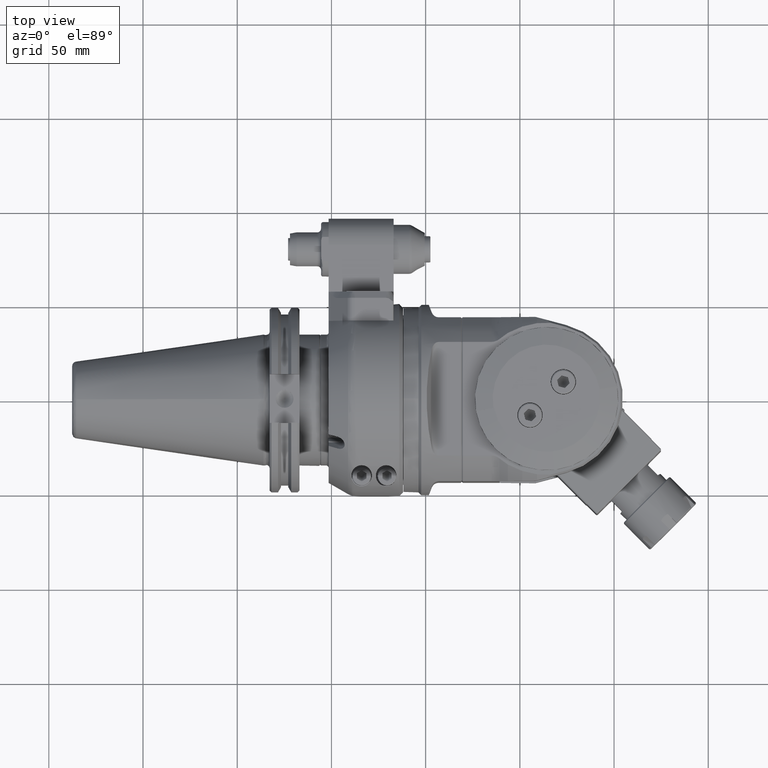
[diagram: clean part render]
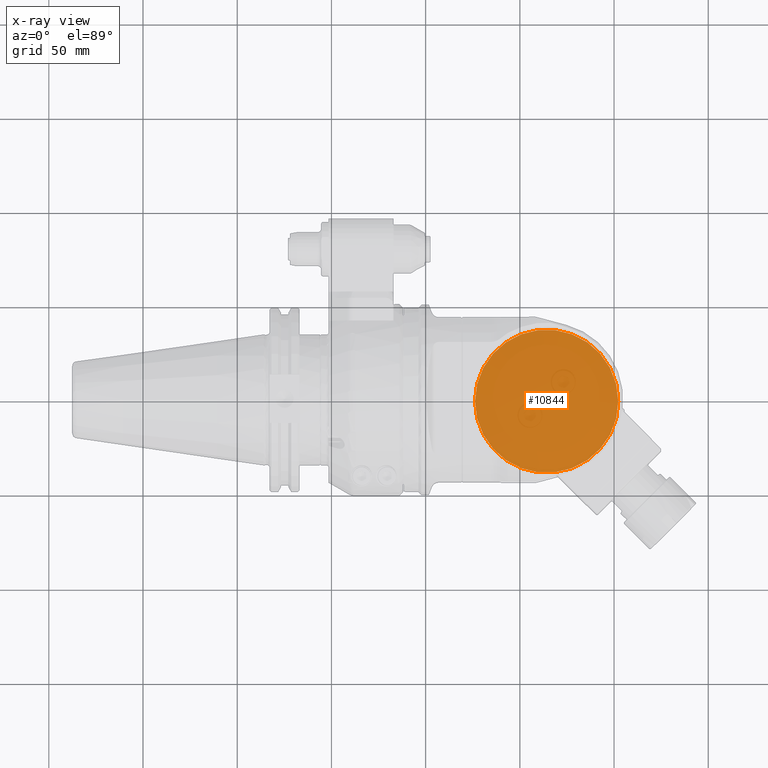
[diagram: x-ray — body ghosted, one internal face saturated and labeled with its STEP entity id]
A machine part, top view, then the same camera in x-ray: the body is ghosted and one INTERNAL B-rep face — a face not visible from any outside direction — is saturated and labeled: STEP entity #10844.
In plain terms, the highlighted planar face has unit normal (0, -0, -1).
Its self-contained STEP definition (entity closure, byte-faithful):
#606=PLANE('',#11949);
#1278=FACE_OUTER_BOUND('',#1976,.T.);
#1976=EDGE_LOOP('',(#9142));
#2584=CIRCLE('',#11948,38.);
#5170=VERTEX_POINT('',#59506);
#6563=EDGE_CURVE('',#5170,#5170,#2584,.T.);
#9142=ORIENTED_EDGE('',*,*,#6563,.T.);
#10844=ADVANCED_FACE('',(#1278),#606,.T.);
#11948=AXIS2_PLACEMENT_3D('',#59507,#14315,#14316);
#11949=AXIS2_PLACEMENT_3D('',#59509,#14318,#14319);
#14315=DIRECTION('center_axis',(0.,0.,1.));
#14316=DIRECTION('ref_axis',(-1.,0.,0.));
#14318=DIRECTION('center_axis',(0.,0.,1.));
#14319=DIRECTION('ref_axis',(1.,0.,0.));
#59506=CARTESIAN_POINT('',(69.,-4.65365783675994E-15,38.5));
#59507=CARTESIAN_POINT('Origin',(107.,0.,38.5));
#59509=CARTESIAN_POINT('Origin',(104.5,3.907985046681E-14,38.5));